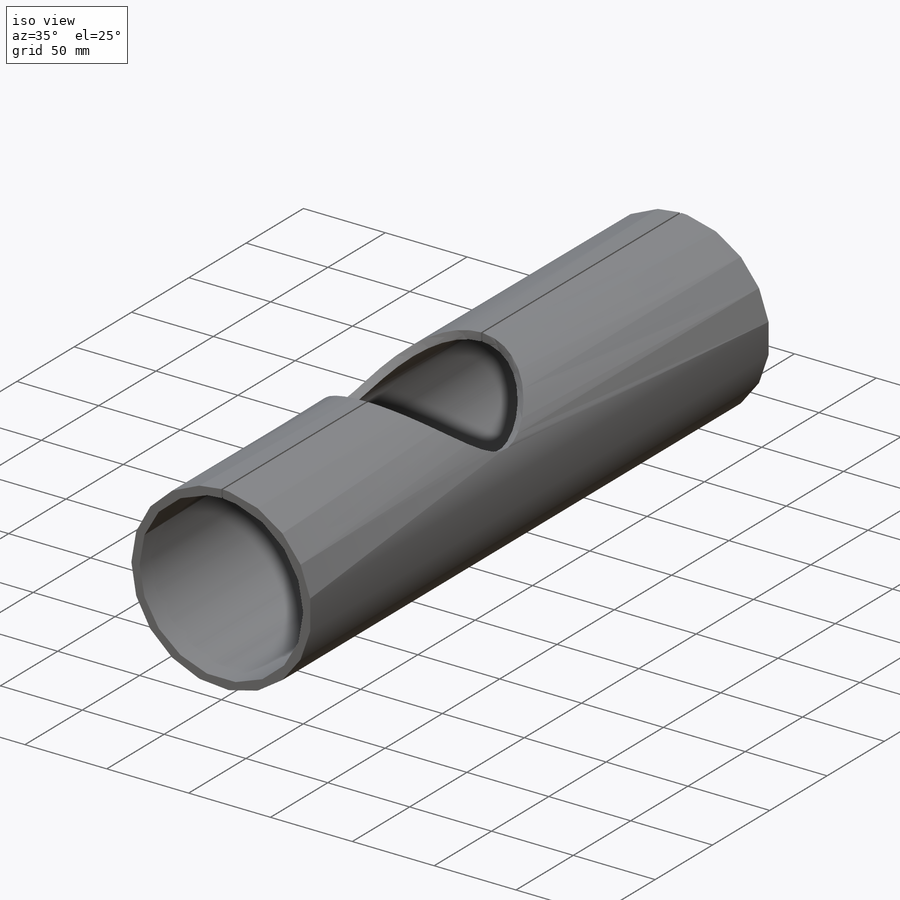
[diagram: iso view]
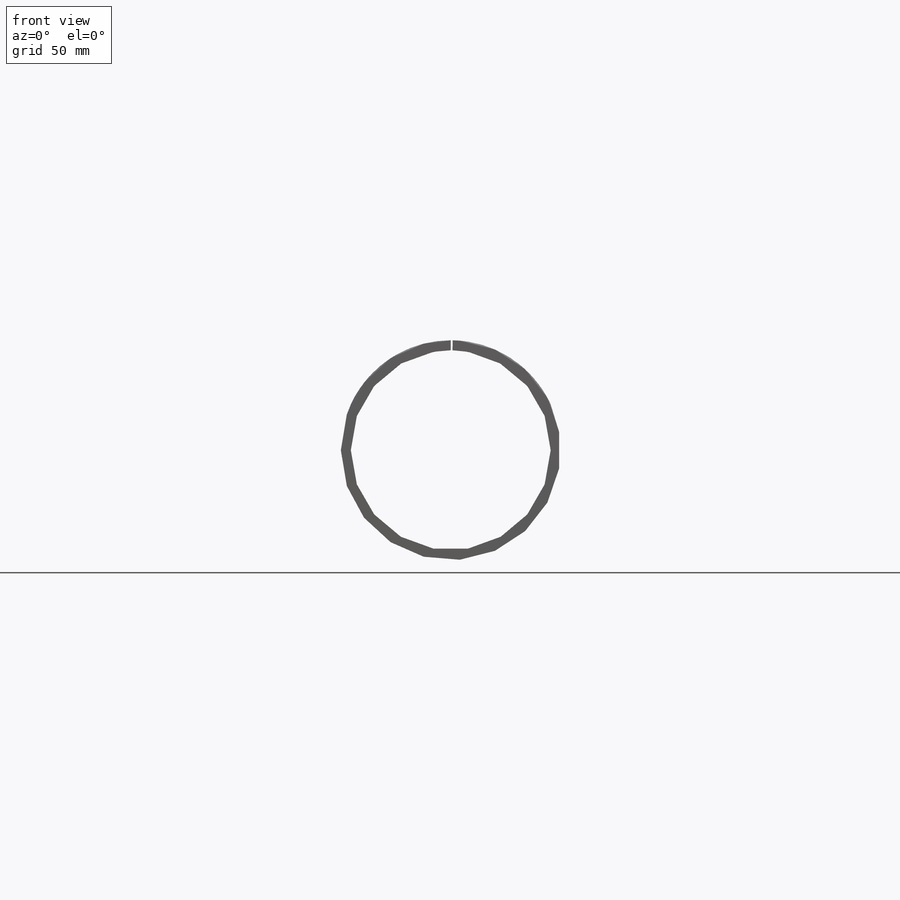
[diagram: front view]
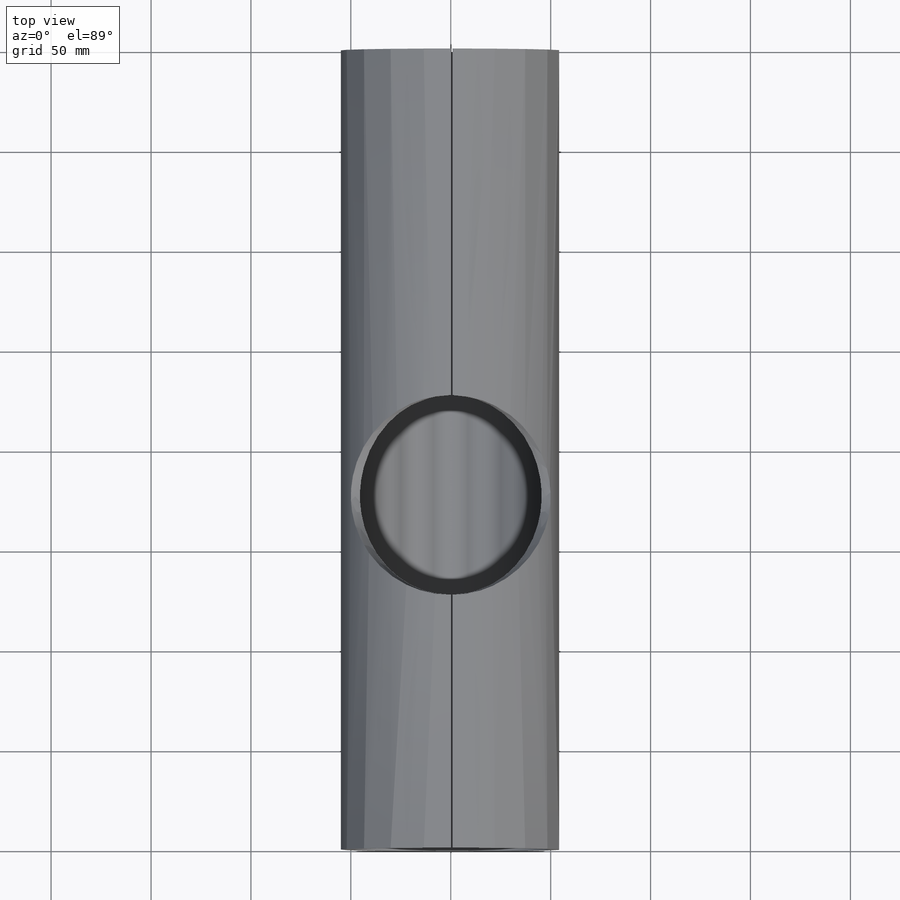
[diagram: top view]
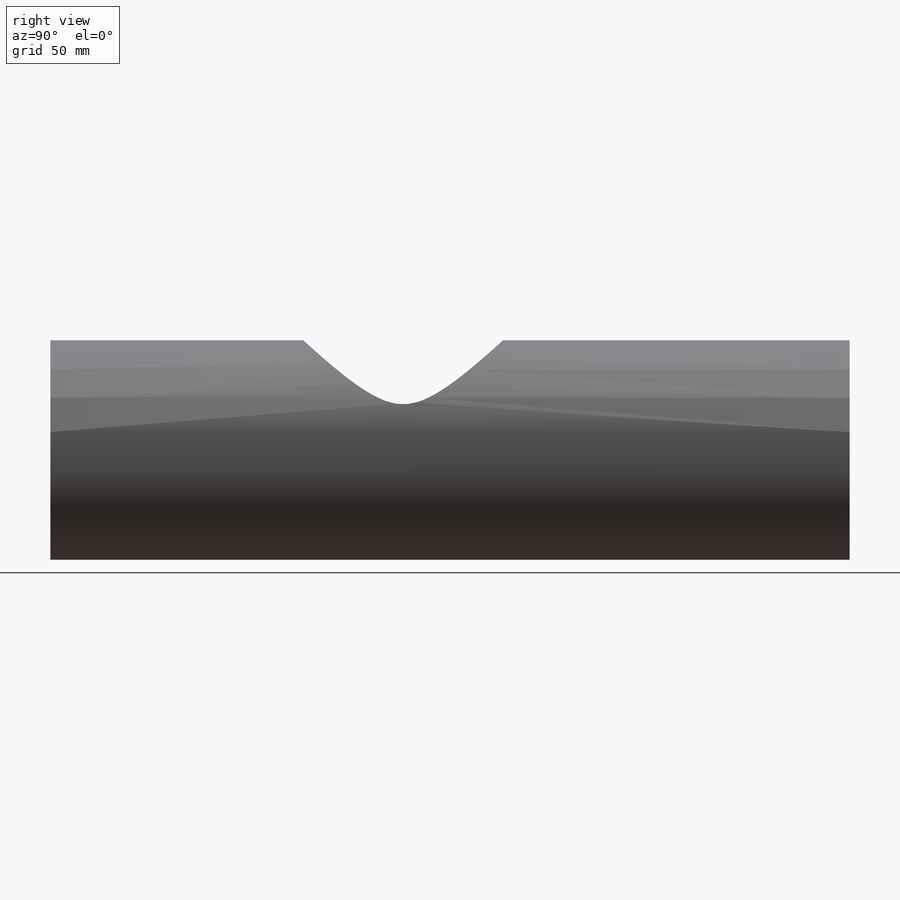
[diagram: right view]
SOLIDWORKS PART (.sldprt)
format: sldprt  version: not decoded by parser v0  size: 208,384 bytes
history: native  units: mm
features: sketch x4, material x1, plane x1, cut_extrude x1, sheet_metal_op x1 (+16 scaffold rows collapsed)
feature tree (24):
  scaffold x16  (default folders/planes/origin — collapsed)
  material  "Material <not specified>"
  sketch  "Sketch1"  dims[c1.D1=~45.280587mm c2.D1=~50.007614mm c3.D1=~86.236841deg c4.D1=~17.447978mm c5.D1=400.0mm c5.Thickness=5.0mm c5.D6=1.0mm c5.D7=5.0mm]
  plane  "Plane3"  Offset=90mm
  sketch  "Sketch7"  dims[D1=~55.007612mm]
  cut_extrude  "Cut-Extrude2"  Depth=73mm
  sheet_metal_op  "Sheet-Metal2"
  sketch  "Sharp-Sketch2"  dims[D1=0.0mm]
  sketch  "Flat-Sketch2"  dims[D1=0.0mm]
decode coverage: 5 of 6 modeling features carry decoded parameters
note: ~ marks probable driven/reference dimensions
note: suppression state not decoded; provenance and decode notes live in map.json
